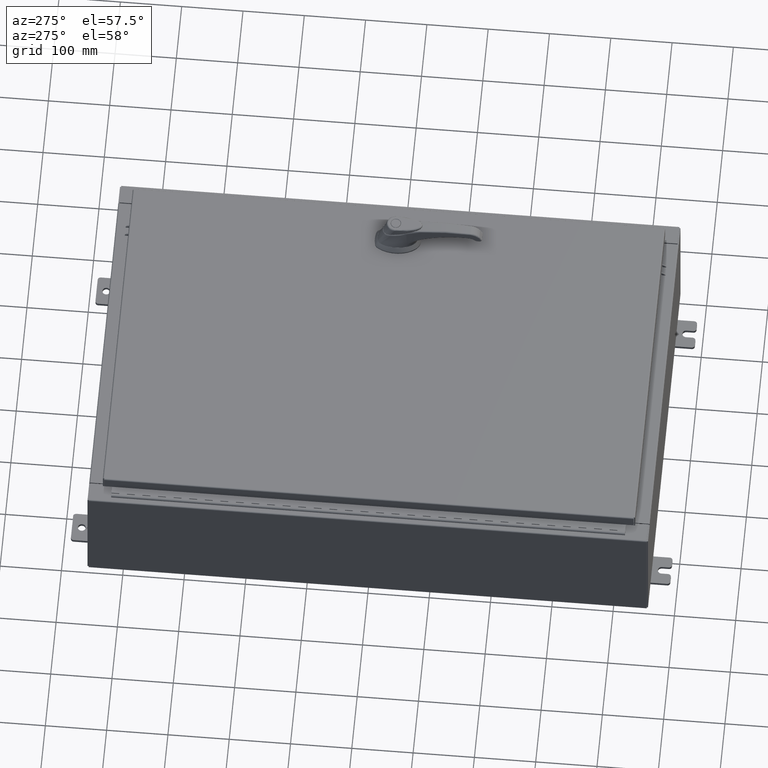
[diagram: clean part render]
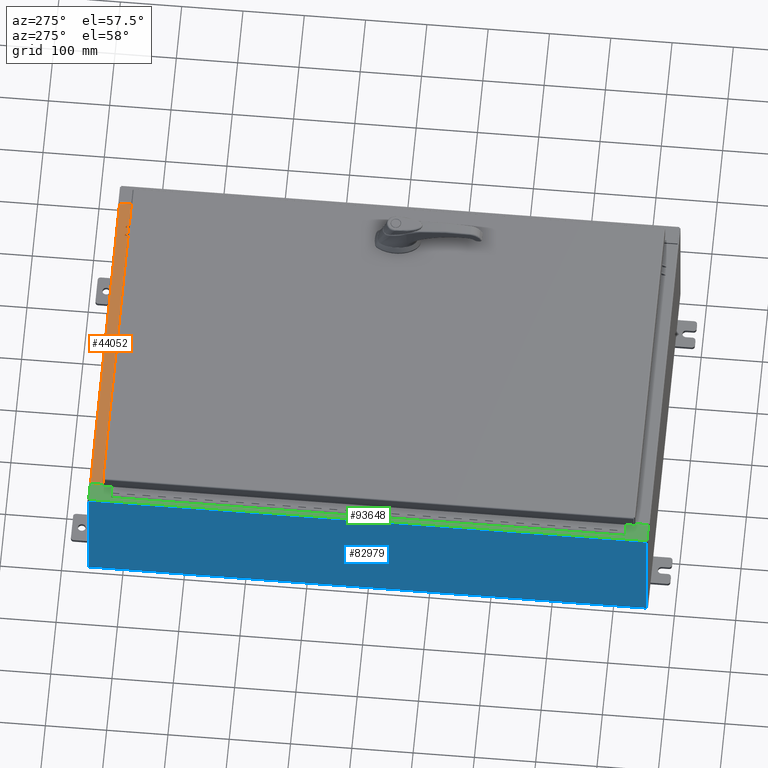
[diagram: same view with three faces highlighted in distinct colors, each labeled with its STEP entity id]
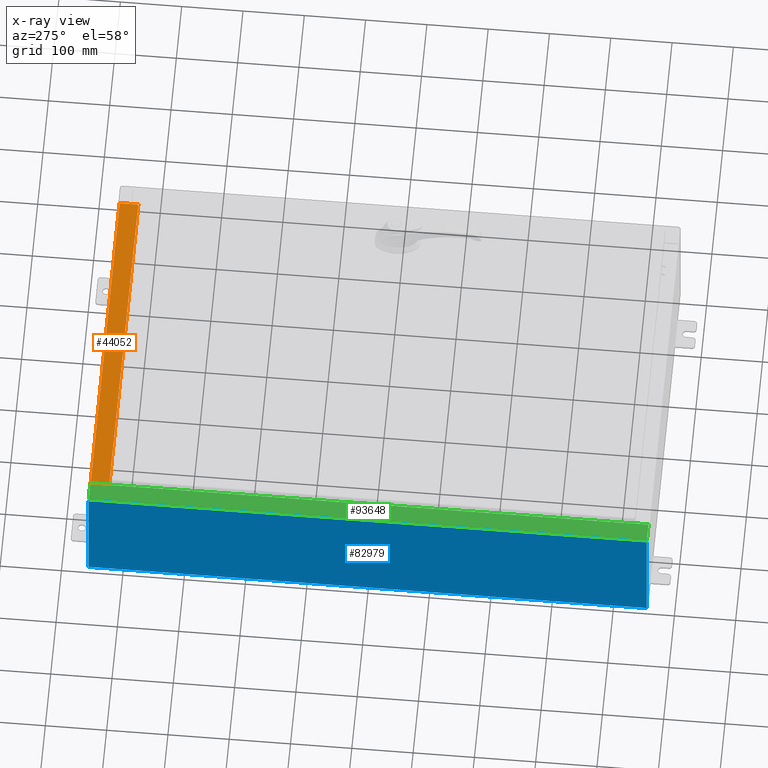
[diagram: x-ray of the same camera — body ghosted, the three highlighted faces saturated]
A machine part, auxiliary view with three faces highlighted in distinct colors.
The next image is the same camera in x-ray (body ghosted, the three faces saturated) — at least one of them is partly hidden behind the body in this view.
Their STEP definitions:

[orange] entity #44052 — the highlighted planar face has unit normal (0, 0, 1).
#364 = ORIENTED_EDGE ( 'NONE', *, *, #98936, .F. ) ;
#7382 = CARTESIAN_POINT ( 'NONE',  ( 10.63720000000000200, -1.300299999999999800, 4.000000000000004400 ) ) ;
#8696 = DIRECTION ( 'NONE',  ( 0.0000000000000000000, -1.000000000000000000, 3.566381192773190000E-015 ) ) ;
#10060 = VECTOR ( 'NONE', #26170, 39.37007874015748100 ) ;
#15619 = EDGE_LOOP ( 'NONE', ( #364, #107872, #90186, #111141 ) ) ;
#24171 = VECTOR ( 'NONE', #106140, 39.37007874015748100 ) ;
#25427 = VECTOR ( 'NONE', #63503, 39.37007874015748100 ) ;
#25832 = EDGE_CURVE ( 'NONE', #64863, #35716, #28383, .T. ) ;
#26077 = CARTESIAN_POINT ( 'NONE',  ( -10.63720000000000200, -0.08770000000000000000, 4.000000000000000000 ) ) ;
#26170 = DIRECTION ( 'NONE',  ( -0.0000000000000000000, -1.000000000000000000, 3.566381192773190000E-015 ) ) ;
#27118 = CARTESIAN_POINT ( 'NONE',  ( 0.0000000000000000000, 1.425992975200418500E-014, 4.000000000000000000 ) ) ;
#28383 = LINE ( 'NONE', #72914, #25427 ) ;
#30786 = CARTESIAN_POINT ( 'NONE',  ( -2.252313287748606700E-018, -0.08770000000000000000, 4.000000000000000900 ) ) ;
#34541 = EDGE_CURVE ( 'NONE', #91380, #64863, #38066, .T. ) ;
#35716 = VERTEX_POINT ( 'NONE', #72519 ) ;
#37098 = DIRECTION ( 'NONE',  ( -0.0000000000000000000, 1.000000000000000000, -3.566381192773190000E-015 ) ) ;
#38066 = LINE ( 'NONE', #7382, #10060 ) ;
#44052 = ADVANCED_FACE ( 'NONE', ( #94141 ), #121436, .T. ) ;
#46119 = CARTESIAN_POINT ( 'NONE',  ( 10.63720000000000400, -0.08769999999999965300, 4.000000000000000000 ) ) ;
#48528 = CARTESIAN_POINT ( 'NONE',  ( 10.63720000000000200, -1.287299999999999900, 4.000000000000004400 ) ) ;
#49201 = EDGE_CURVE ( 'NONE', #91380, #71638, #49365, .T. ) ;
#49365 = LINE ( 'NONE', #30786, #24171 ) ;
#63503 = DIRECTION ( 'NONE',  ( -1.000000000000000000, 0.0000000000000000000, 0.0000000000000000000 ) ) ;
#64863 = VERTEX_POINT ( 'NONE', #48528 ) ;
#65153 = DIRECTION ( 'NONE',  ( 0.0000000000000000000, 3.566381192773190000E-015, 1.000000000000000000 ) ) ;
#71638 = VERTEX_POINT ( 'NONE', #26077 ) ;
#72519 = CARTESIAN_POINT ( 'NONE',  ( -10.63720000000000200, -1.287299999999999200, 4.000000000000004400 ) ) ;
#72914 = CARTESIAN_POINT ( 'NONE',  ( 10.63720000000000400, -1.287299999999999900, 4.000000000000003600 ) ) ;
#82927 = LINE ( 'NONE', #102941, #102061 ) ;
#90186 = ORIENTED_EDGE ( 'NONE', *, *, #34541, .F. ) ;
#91380 = VERTEX_POINT ( 'NONE', #46119 ) ;
#94141 = FACE_OUTER_BOUND ( 'NONE', #15619, .T. ) ;
#98936 = EDGE_CURVE ( 'NONE', #35716, #71638, #82927, .T. ) ;
#102061 = VECTOR ( 'NONE', #37098, 39.37007874015748100 ) ;
#102941 = CARTESIAN_POINT ( 'NONE',  ( -10.63720000000000200, -0.07469999999999973900, 4.000000000000000000 ) ) ;
#106140 = DIRECTION ( 'NONE',  ( -1.000000000000000000, 2.568202152506545800E-017, -9.159187855938968600E-032 ) ) ;
#107872 = ORIENTED_EDGE ( 'NONE', *, *, #25832, .F. ) ;
#111141 = ORIENTED_EDGE ( 'NONE', *, *, #49201, .T. ) ;
#114301 = AXIS2_PLACEMENT_3D ( 'NONE', #27118, #65153, #8696 ) ;
#121436 = PLANE ( 'NONE',  #114301 ) ;

[blue] entity #82979 — the highlighted planar face has unit normal (1, 0, 0).
#4399 = LINE ( 'NONE', #45431, #20453 ) ;
#9237 = DIRECTION ( 'NONE',  ( 0.0000000000000000000, 1.000000000000000000, 0.0000000000000000000 ) ) ;
#9573 = CARTESIAN_POINT ( 'NONE',  ( -12.00000000000000200, 17.92529999999999600, -4.327932773236201900E-014 ) ) ;
#9882 = VERTEX_POINT ( 'NONE', #98540 ) ;
#10648 = VECTOR ( 'NONE', #116981, 39.37007874015748100 ) ;
#11333 = ORIENTED_EDGE ( 'NONE', *, *, #30394, .T. ) ;
#12091 = EDGE_LOOP ( 'NONE', ( #45952, #83597, #42302, #11333 ) ) ;
#16639 = CARTESIAN_POINT ( 'NONE',  ( -12.00000000000003000, -17.92530000000000400, 7.837599999999999200 ) ) ;
#17253 = CARTESIAN_POINT ( 'NONE',  ( -12.00000000000000200, 0.0000000000000000000, -4.327932773236201900E-014 ) ) ;
#18953 = DIRECTION ( 'NONE',  ( 3.584876173029202900E-015, 0.0000000000000000000, -1.000000000000000000 ) ) ;
#20453 = VECTOR ( 'NONE', #120703, 39.37007874015748100 ) ;
#22956 = CARTESIAN_POINT ( 'NONE',  ( -12.00000000000000200, 17.92529999999999600, 0.01299999999999983600 ) ) ;
#24382 = EDGE_CURVE ( 'NONE', #9882, #119544, #119973, .T. ) ;
#26698 = DIRECTION ( 'NONE',  ( 1.000000000000000000, 0.0000000000000000000, 3.584876173029202900E-015 ) ) ;
#30394 = EDGE_CURVE ( 'NONE', #51760, #74034, #85778, .T. ) ;
#35084 = EDGE_CURVE ( 'NONE', #74034, #9882, #95568, .T. ) ;
#42302 = ORIENTED_EDGE ( 'NONE', *, *, #90690, .F. ) ;
#45431 = CARTESIAN_POINT ( 'NONE',  ( -12.00000000000000200, 17.92529999999999600, 0.01299999999999984700 ) ) ;
#45529 = VECTOR ( 'NONE', #9237, 39.37007874015748100 ) ;
#45952 = ORIENTED_EDGE ( 'NONE', *, *, #35084, .T. ) ;
#51760 = VERTEX_POINT ( 'NONE', #66026 ) ;
#60280 = CARTESIAN_POINT ( 'NONE',  ( -12.00000000000000200, -17.92530000000000400, -4.327932773236201900E-014 ) ) ;
#66026 = CARTESIAN_POINT ( 'NONE',  ( -12.00000000000000200, -17.92530000000000400, 0.01299999999999984700 ) ) ;
#69973 = VECTOR ( 'NONE', #18953, 39.37007874015748100 ) ;
#74034 = VERTEX_POINT ( 'NONE', #16639 ) ;
#82979 = ADVANCED_FACE ( 'NONE', ( #119741 ), #83176, .F. ) ;
#83176 = PLANE ( 'NONE',  #106230 ) ;
#83597 = ORIENTED_EDGE ( 'NONE', *, *, #24382, .T. ) ;
#85778 = LINE ( 'NONE', #60280, #10648 ) ;
#90690 = EDGE_CURVE ( 'NONE', #51760, #119544, #4399, .T. ) ;
#92651 = DIRECTION ( 'NONE',  ( 3.584876173029202900E-015, 0.0000000000000000000, -1.000000000000000000 ) ) ;
#93588 = CARTESIAN_POINT ( 'NONE',  ( -12.00000000000003000, -17.92530000000000400, 7.837599999999999200 ) ) ;
#95568 = LINE ( 'NONE', #93588, #45529 ) ;
#98540 = CARTESIAN_POINT ( 'NONE',  ( -12.00000000000003000, 17.92529999999999600, 7.837599999999999200 ) ) ;
#106230 = AXIS2_PLACEMENT_3D ( 'NONE', #17253, #26698, #92651 ) ;
#116981 = DIRECTION ( 'NONE',  ( -3.584876173029202900E-015, 0.0000000000000000000, 1.000000000000000000 ) ) ;
#119544 = VERTEX_POINT ( 'NONE', #22956 ) ;
#119741 = FACE_OUTER_BOUND ( 'NONE', #12091, .T. ) ;
#119973 = LINE ( 'NONE', #9573, #69973 ) ;
#120703 = DIRECTION ( 'NONE',  ( -0.0000000000000000000, 1.000000000000000000, -0.0000000000000000000 ) ) ;

[green] entity #93648 — the highlighted planar face has unit normal (0, 0, -1).
#1175 = CARTESIAN_POINT ( 'NONE',  ( -10.75005000000003000, -16.63110000000000400, 7.925300000000010700 ) ) ;
#4811 = DIRECTION ( 'NONE',  ( -1.000000000000000000, 0.0000000000000000000, -7.132762385546384700E-015 ) ) ;
#5334 = CARTESIAN_POINT ( 'NONE',  ( -10.75005000000003000, -16.63110000000000400, 7.925300000000008900 ) ) ;
#8416 = ORIENTED_EDGE ( 'NONE', *, *, #17929, .F. ) ;
#10251 = LINE ( 'NONE', #110662, #98591 ) ;
#12023 = EDGE_CURVE ( 'NONE', #13421, #77058, #47862, .T. ) ;
#12235 = VERTEX_POINT ( 'NONE', #41855 ) ;
#13421 = VERTEX_POINT ( 'NONE', #5334 ) ;
#16241 = EDGE_LOOP ( 'NONE', ( #53189, #94175, #42821, #116808, #52484, #36128, #54493, #78155, #75738, #82419, #8416, #26961 ) ) ;
#17929 = EDGE_CURVE ( 'NONE', #96951, #120459, #10251, .T. ) ;
#17963 = LINE ( 'NONE', #31624, #81342 ) ;
#22511 = CARTESIAN_POINT ( 'NONE',  ( -10.71270000000003000, 16.59375000000000000, 7.925300000000010700 ) ) ;
#23224 = LINE ( 'NONE', #27095, #70478 ) ;
#25628 = VECTOR ( 'NONE', #57588, 39.37007874015748100 ) ;
#25864 = CARTESIAN_POINT ( 'NONE',  ( -11.91230000000002900, -17.92530000000000400, 7.925300000000000000 ) ) ;
#26530 = EDGE_CURVE ( 'NONE', #85135, #77058, #62325, .T. ) ;
#26961 = ORIENTED_EDGE ( 'NONE', *, *, #47564, .F. ) ;
#27095 = CARTESIAN_POINT ( 'NONE',  ( -5.679009539018295300E-014, -17.92530000000000400, 7.925300000000085300 ) ) ;
#28148 = VERTEX_POINT ( 'NONE', #29619 ) ;
#29508 = DIRECTION ( 'NONE',  ( -0.0000000000000000000, 1.000000000000000000, -0.0000000000000000000 ) ) ;
#29619 = CARTESIAN_POINT ( 'NONE',  ( -10.75005000000003000, -16.59375000000000400, 7.925300000000008900 ) ) ;
#31624 = CARTESIAN_POINT ( 'NONE',  ( -10.69970000000003000, 16.63110000000000000, 7.925300000000009800 ) ) ;
#32053 = DIRECTION ( 'NONE',  ( -1.000000000000000000, 0.0000000000000000000, 0.0000000000000000000 ) ) ;
#32300 = LINE ( 'NONE', #62396, #51531 ) ;
#33622 = CARTESIAN_POINT ( 'NONE',  ( -10.69970000000003000, -17.92530000000000400, 7.925300000000008900 ) ) ;
#35793 = CARTESIAN_POINT ( 'NONE',  ( -10.69970000000003000, 17.92529999999999600, 7.925300000000008900 ) ) ;
#35875 = EDGE_CURVE ( 'NONE', #82524, #85135, #23224, .T. ) ;
#36128 = ORIENTED_EDGE ( 'NONE', *, *, #26530, .T. ) ;
#36646 = DIRECTION ( 'NONE',  ( 1.000000000000000000, -0.0000000000000000000, 7.132762385546384700E-015 ) ) ;
#37210 = VECTOR ( 'NONE', #121663, 39.37007874015748100 ) ;
#38894 = VERTEX_POINT ( 'NONE', #97352 ) ;
#40664 = AXIS2_PLACEMENT_3D ( 'NONE', #91115, #53722, #119481 ) ;
#41293 = CARTESIAN_POINT ( 'NONE',  ( -10.75005000000003000, -16.61242500000000200, 7.925300000000010700 ) ) ;
#41855 = CARTESIAN_POINT ( 'NONE',  ( -10.69970000000003000, 16.63110000000000000, 7.925300000000008900 ) ) ;
#41914 = LINE ( 'NONE', #117516, #44869 ) ;
#42821 = ORIENTED_EDGE ( 'NONE', *, *, #73750, .T. ) ;
#44869 = VECTOR ( 'NONE', #4811, 39.37007874015748100 ) ;
#45103 = VECTOR ( 'NONE', #105939, 39.37007874015748100 ) ;
#47273 = CARTESIAN_POINT ( 'NONE',  ( -10.75005000000003000, 16.61242499999999800, 7.925300000000010700 ) ) ;
#47564 = EDGE_CURVE ( 'NONE', #38894, #96951, #59875, .T. ) ;
#47862 = LINE ( 'NONE', #1175, #25628 ) ;
#49741 = CARTESIAN_POINT ( 'NONE',  ( -10.71270000000003000, -16.59375000000000400, 7.925300000000010700 ) ) ;
#50799 = DIRECTION ( 'NONE',  ( 1.000000000000000000, 0.0000000000000000000, 0.0000000000000000000 ) ) ;
#51531 = VECTOR ( 'NONE', #71420, 39.37007874015748100 ) ;
#52484 = ORIENTED_EDGE ( 'NONE', *, *, #35875, .T. ) ;
#53189 = ORIENTED_EDGE ( 'NONE', *, *, #121723, .F. ) ;
#53722 = DIRECTION ( 'NONE',  ( 7.132762385546384700E-015, 0.0000000000000000000, -1.000000000000000000 ) ) ;
#53873 = CARTESIAN_POINT ( 'NONE',  ( -10.75005000000003000, 16.59375000000000000, 7.925300000000008900 ) ) ;
#54493 = ORIENTED_EDGE ( 'NONE', *, *, #12023, .F. ) ;
#55558 = LINE ( 'NONE', #104887, #61476 ) ;
#56754 = DIRECTION ( 'NONE',  ( 1.000000000000000000, 0.0000000000000000000, 0.0000000000000000000 ) ) ;
#57588 = DIRECTION ( 'NONE',  ( 1.000000000000000000, -4.340572780400098900E-014, -2.170286390200049500E-014 ) ) ;
#59378 = VECTOR ( 'NONE', #32053, 39.37007874015748100 ) ;
#59875 = CIRCLE ( 'NONE', #82945, 0.01867499999999949400 ) ;
#60248 = VERTEX_POINT ( 'NONE', #49741 ) ;
#61476 = VECTOR ( 'NONE', #29508, 39.37007874015748100 ) ;
#62325 = LINE ( 'NONE', #112208, #37210 ) ;
#62396 = CARTESIAN_POINT ( 'NONE',  ( -10.69970000000003000, 0.0000000000000000000, 7.925300000000008900 ) ) ;
#70444 = FACE_OUTER_BOUND ( 'NONE', #16241, .T. ) ;
#70478 = VECTOR ( 'NONE', #36646, 39.37007874015748100 ) ;
#71420 = DIRECTION ( 'NONE',  ( 0.0000000000000000000, 1.000000000000000000, 0.0000000000000000000 ) ) ;
#72084 = EDGE_CURVE ( 'NONE', #120459, #60248, #95127, .T. ) ;
#73750 = EDGE_CURVE ( 'NONE', #116163, #91725, #41914, .T. ) ;
#75738 = ORIENTED_EDGE ( 'NONE', *, *, #99309, .F. ) ;
#77058 = VERTEX_POINT ( 'NONE', #80326 ) ;
#78155 = ORIENTED_EDGE ( 'NONE', *, *, #85999, .F. ) ;
#80326 = CARTESIAN_POINT ( 'NONE',  ( -10.69970000000003000, -16.63110000000000700, 7.925300000000008900 ) ) ;
#81342 = VECTOR ( 'NONE', #88086, 39.37007874015748100 ) ;
#81403 = LINE ( 'NONE', #88527, #59378 ) ;
#82419 = ORIENTED_EDGE ( 'NONE', *, *, #72084, .F. ) ;
#82524 = VERTEX_POINT ( 'NONE', #25864 ) ;
#82945 = AXIS2_PLACEMENT_3D ( 'NONE', #47273, #113061, #56754 ) ;
#85135 = VERTEX_POINT ( 'NONE', #33622 ) ;
#85999 = EDGE_CURVE ( 'NONE', #28148, #13421, #117848, .T. ) ;
#88086 = DIRECTION ( 'NONE',  ( -1.000000000000000000, -4.340572780400098900E-014, 2.170286390200049500E-014 ) ) ;
#88527 = CARTESIAN_POINT ( 'NONE',  ( -10.71270000000003000, -16.59375000000000400, 7.925300000000010700 ) ) ;
#89867 = AXIS2_PLACEMENT_3D ( 'NONE', #41293, #107099, #50799 ) ;
#90564 = EDGE_CURVE ( 'NONE', #12235, #116163, #32300, .T. ) ;
#91115 = CARTESIAN_POINT ( 'NONE',  ( -5.679009539018295300E-014, 0.0000000000000000000, 7.925300000000085300 ) ) ;
#91725 = VERTEX_POINT ( 'NONE', #97065 ) ;
#93648 = ADVANCED_FACE ( 'NONE', ( #70444 ), #110009, .F. ) ;
#94175 = ORIENTED_EDGE ( 'NONE', *, *, #90564, .T. ) ;
#95127 = LINE ( 'NONE', #96497, #45103 ) ;
#96497 = CARTESIAN_POINT ( 'NONE',  ( -10.71270000000003000, 16.59375000000000000, 7.925300000000010700 ) ) ;
#96951 = VERTEX_POINT ( 'NONE', #53873 ) ;
#97065 = CARTESIAN_POINT ( 'NONE',  ( -11.91230000000002900, 17.92529999999999600, 7.925300000000000000 ) ) ;
#97352 = CARTESIAN_POINT ( 'NONE',  ( -10.75005000000003000, 16.63110000000000000, 7.925300000000008900 ) ) ;
#98591 = VECTOR ( 'NONE', #120112, 39.37007874015748100 ) ;
#99309 = EDGE_CURVE ( 'NONE', #60248, #28148, #81403, .T. ) ;
#104887 = CARTESIAN_POINT ( 'NONE',  ( -11.91230000000002900, 17.92529999999999600, 7.925300000000000000 ) ) ;
#105939 = DIRECTION ( 'NONE',  ( -0.0000000000000000000, -1.000000000000000000, -0.0000000000000000000 ) ) ;
#107099 = DIRECTION ( 'NONE',  ( -7.132762385546384700E-015, -0.0000000000000000000, 1.000000000000000000 ) ) ;
#110009 = PLANE ( 'NONE',  #40664 ) ;
#110662 = CARTESIAN_POINT ( 'NONE',  ( -10.75005000000003000, 16.59375000000000000, 7.925300000000010700 ) ) ;
#111250 = EDGE_CURVE ( 'NONE', #82524, #91725, #55558, .T. ) ;
#112208 = CARTESIAN_POINT ( 'NONE',  ( -10.69970000000003000, 0.0000000000000000000, 7.925300000000008900 ) ) ;
#113061 = DIRECTION ( 'NONE',  ( -7.132762385546384700E-015, -0.0000000000000000000, 1.000000000000000000 ) ) ;
#116163 = VERTEX_POINT ( 'NONE', #35793 ) ;
#116808 = ORIENTED_EDGE ( 'NONE', *, *, #111250, .F. ) ;
#117516 = CARTESIAN_POINT ( 'NONE',  ( -5.679009539018295300E-014, 17.92529999999999600, 7.925300000000085300 ) ) ;
#117848 = CIRCLE ( 'NONE', #89867, 0.01867499999999949400 ) ;
#119481 = DIRECTION ( 'NONE',  ( -1.000000000000000000, 0.0000000000000000000, -7.132762385546384700E-015 ) ) ;
#120112 = DIRECTION ( 'NONE',  ( 1.000000000000000000, 0.0000000000000000000, 0.0000000000000000000 ) ) ;
#120459 = VERTEX_POINT ( 'NONE', #22511 ) ;
#121663 = DIRECTION ( 'NONE',  ( 0.0000000000000000000, 1.000000000000000000, 0.0000000000000000000 ) ) ;
#121723 = EDGE_CURVE ( 'NONE', #12235, #38894, #17963, .T. ) ;